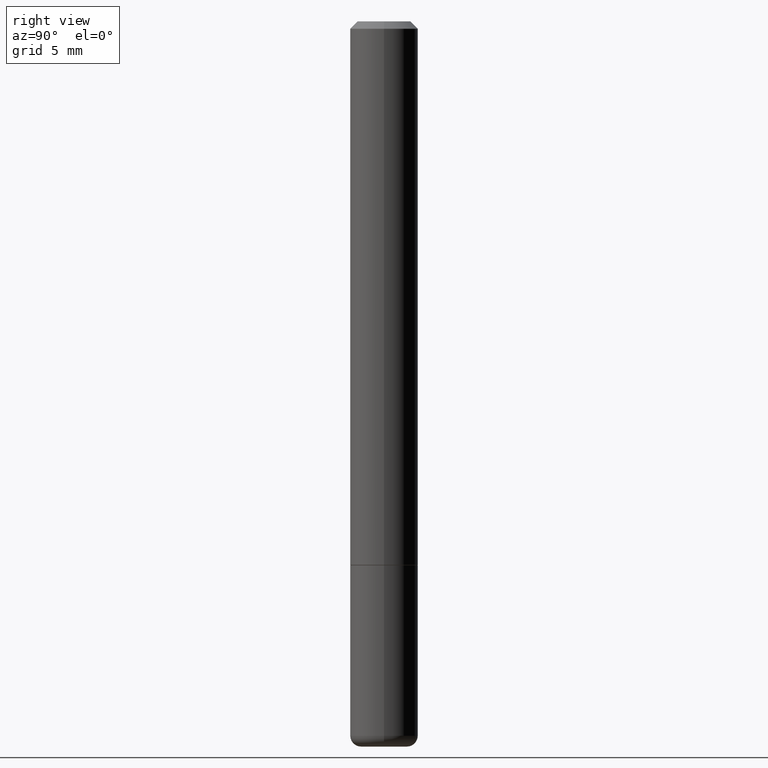
[diagram: clean part render]
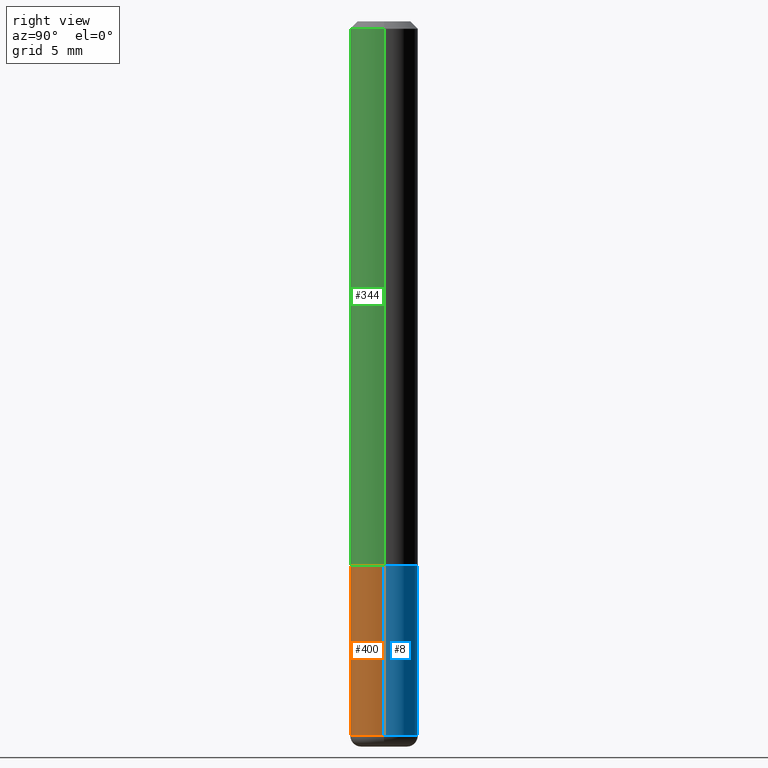
[diagram: same view with three faces highlighted in distinct colors, each labeled with its STEP entity id]
A machine part, right view with three faces highlighted in distinct colors.
Their STEP definitions:

[orange] entity #400 — the highlighted cylindrical surface (edge-blend (fillet) strip) has radius 2.3813 mm, axis along (-0, 0, 1).
#6 = AXIS2_PLACEMENT_3D ( 'NONE', #203, #313, #345 ) ;
#10 = CARTESIAN_POINT ( 'NONE',  ( 0.000000000000000000, 0.000000000000000000, 0.000000000000000000 ) ) ;
#46 = CARTESIAN_POINT ( 'NONE',  ( 0.09374999999999991673, -7.532870988554083722E-15, -1.969999999999999973 ) ) ;
#49 = DIRECTION ( 'NONE',  ( -2.445468806185136597E-29, 3.491481338843145583E-15, 1.000000000000000000 ) ) ;
#59 = DIRECTION ( 'NONE',  ( -2.445468806185136877E-29, 3.491481338843145188E-15, 1.000000000000000000 ) ) ;
#110 = CYLINDRICAL_SURFACE ( 'NONE', #158, 0.09375000000000001388 ) ;
#127 = VECTOR ( 'NONE', #134, 39.37007874015748143 ) ;
#132 = CARTESIAN_POINT ( 'NONE',  ( -0.09375000000000001388, -5.391586308117763273E-15, -1.499999999999999778 ) ) ;
#133 = EDGE_CURVE ( 'NONE', #390, #312, #283, .T. ) ;
#134 = DIRECTION ( 'NONE',  ( -2.445468806185136877E-29, 3.491481338843145188E-15, 1.000000000000000000 ) ) ;
#142 = DIRECTION ( 'NONE',  ( -2.445468806185136597E-29, 3.491481338843145583E-15, 1.000000000000000000 ) ) ;
#144 = CARTESIAN_POINT ( 'NONE',  ( 3.668203209277704335E-29, -5.237222008264717388E-15, -1.499999999999999778 ) ) ;
#158 = AXIS2_PLACEMENT_3D ( 'NONE', #10, #142, #396 ) ;
#164 = AXIS2_PLACEMENT_3D ( 'NONE', #144, #49, #398 ) ;
#171 = VERTEX_POINT ( 'NONE', #343 ) ;
#179 = FACE_OUTER_BOUND ( 'NONE', #263, .T. ) ;
#186 = ORIENTED_EDGE ( 'NONE', *, *, #133, .T. ) ;
#194 = CARTESIAN_POINT ( 'NONE',  ( 0.09375000000000001388, -6.546527510330875041E-16, 4.571415727308690506E-30 ) ) ;
#195 = CARTESIAN_POINT ( 'NONE',  ( -0.09375000000000001388, 6.661338147750940229E-16, -4.611501647113973995E-30 ) ) ;
#200 = CARTESIAN_POINT ( 'NONE',  ( 0.09375000000000001388, -5.891874759297804892E-15, -1.499999999999999778 ) ) ;
#203 = CARTESIAN_POINT ( 'NONE',  ( 4.817573548184719118E-29, -6.878218237520997007E-15, -1.969999999999999973 ) ) ;
#208 = VECTOR ( 'NONE', #59, 39.37007874015748143 ) ;
#210 = EDGE_CURVE ( 'NONE', #171, #327, #294, .T. ) ;
#225 = EDGE_CURVE ( 'NONE', #171, #390, #321, .T. ) ;
#263 = EDGE_LOOP ( 'NONE', ( #351, #297, #186, #392 ) ) ;
#283 = LINE ( 'NONE', #194, #208 ) ;
#290 = CIRCLE ( 'NONE', #164, 0.09375000000000001388 ) ;
#294 = LINE ( 'NONE', #195, #127 ) ;
#297 = ORIENTED_EDGE ( 'NONE', *, *, #225, .T. ) ;
#312 = VERTEX_POINT ( 'NONE', #200 ) ;
#313 = DIRECTION ( 'NONE',  ( -2.445468806185136597E-29, 3.491481338843145583E-15, 1.000000000000000000 ) ) ;
#321 = CIRCLE ( 'NONE', #6, 0.09375000000000001388 ) ;
#327 = VERTEX_POINT ( 'NONE', #132 ) ;
#343 = CARTESIAN_POINT ( 'NONE',  ( -0.09374999999999991673, -6.212084422745903871E-15, -1.969999999999999973 ) ) ;
#345 = DIRECTION ( 'NONE',  ( 1.000000000000000000, -6.982962677686261189E-15, 0.000000000000000000 ) ) ;
#351 = ORIENTED_EDGE ( 'NONE', *, *, #210, .F. ) ;
#390 = VERTEX_POINT ( 'NONE', #46 ) ;
#392 = ORIENTED_EDGE ( 'NONE', *, *, #393, .F. ) ;
#393 = EDGE_CURVE ( 'NONE', #327, #312, #290, .T. ) ;
#396 = DIRECTION ( 'NONE',  ( 1.000000000000000000, -6.982962677686265922E-15, 4.876176775795935793E-29 ) ) ;
#398 = DIRECTION ( 'NONE',  ( 1.000000000000000000, -6.982962677686261189E-15, 0.000000000000000000 ) ) ;
#400 = ADVANCED_FACE ( 'NONE', ( #179 ), #110, .T. ) ;

[blue] entity #8 — the highlighted cylindrical surface (edge-blend (fillet) strip) has radius 2.3813 mm, axis along (-0, 0, 1).
#8 = ADVANCED_FACE ( 'NONE', ( #245 ), #23, .T. ) ;
#18 = CIRCLE ( 'NONE', #255, 0.09375000000000001388 ) ;
#23 = CYLINDRICAL_SURFACE ( 'NONE', #196, 0.09375000000000001388 ) ;
#46 = CARTESIAN_POINT ( 'NONE',  ( 0.09374999999999991673, -7.532870988554083722E-15, -1.969999999999999973 ) ) ;
#59 = DIRECTION ( 'NONE',  ( -2.445468806185136877E-29, 3.491481338843145188E-15, 1.000000000000000000 ) ) ;
#88 = CARTESIAN_POINT ( 'NONE',  ( 0.000000000000000000, 0.000000000000000000, 0.000000000000000000 ) ) ;
#127 = VECTOR ( 'NONE', #134, 39.37007874015748143 ) ;
#132 = CARTESIAN_POINT ( 'NONE',  ( -0.09375000000000001388, -5.391586308117763273E-15, -1.499999999999999778 ) ) ;
#133 = EDGE_CURVE ( 'NONE', #390, #312, #283, .T. ) ;
#134 = DIRECTION ( 'NONE',  ( -2.445468806185136877E-29, 3.491481338843145188E-15, 1.000000000000000000 ) ) ;
#139 = EDGE_CURVE ( 'NONE', #312, #327, #18, .T. ) ;
#140 = AXIS2_PLACEMENT_3D ( 'NONE', #165, #416, #319 ) ;
#155 = DIRECTION ( 'NONE',  ( -2.445468806185136597E-29, 3.491481338843145583E-15, 1.000000000000000000 ) ) ;
#165 = CARTESIAN_POINT ( 'NONE',  ( 4.817573548184719118E-29, -6.878218237520997007E-15, -1.969999999999999973 ) ) ;
#171 = VERTEX_POINT ( 'NONE', #343 ) ;
#194 = CARTESIAN_POINT ( 'NONE',  ( 0.09375000000000001388, -6.546527510330875041E-16, 4.571415727308690506E-30 ) ) ;
#195 = CARTESIAN_POINT ( 'NONE',  ( -0.09375000000000001388, 6.661338147750940229E-16, -4.611501647113973995E-30 ) ) ;
#196 = AXIS2_PLACEMENT_3D ( 'NONE', #88, #155, #335 ) ;
#200 = CARTESIAN_POINT ( 'NONE',  ( 0.09375000000000001388, -5.891874759297804892E-15, -1.499999999999999778 ) ) ;
#208 = VECTOR ( 'NONE', #59, 39.37007874015748143 ) ;
#210 = EDGE_CURVE ( 'NONE', #171, #327, #294, .T. ) ;
#221 = DIRECTION ( 'NONE',  ( 1.000000000000000000, -6.982962677686261189E-15, 0.000000000000000000 ) ) ;
#245 = FACE_OUTER_BOUND ( 'NONE', #266, .T. ) ;
#255 = AXIS2_PLACEMENT_3D ( 'NONE', #411, #339, #221 ) ;
#266 = EDGE_LOOP ( 'NONE', ( #395, #373, #324, #384 ) ) ;
#275 = EDGE_CURVE ( 'NONE', #390, #171, #361, .T. ) ;
#283 = LINE ( 'NONE', #194, #208 ) ;
#294 = LINE ( 'NONE', #195, #127 ) ;
#312 = VERTEX_POINT ( 'NONE', #200 ) ;
#319 = DIRECTION ( 'NONE',  ( 1.000000000000000000, -6.982962677686261189E-15, 0.000000000000000000 ) ) ;
#324 = ORIENTED_EDGE ( 'NONE', *, *, #139, .F. ) ;
#327 = VERTEX_POINT ( 'NONE', #132 ) ;
#335 = DIRECTION ( 'NONE',  ( 1.000000000000000000, -6.982962677686265922E-15, 4.876176775795935793E-29 ) ) ;
#339 = DIRECTION ( 'NONE',  ( -2.445468806185136597E-29, 3.491481338843145583E-15, 1.000000000000000000 ) ) ;
#343 = CARTESIAN_POINT ( 'NONE',  ( -0.09374999999999991673, -6.212084422745903871E-15, -1.969999999999999973 ) ) ;
#361 = CIRCLE ( 'NONE', #140, 0.09375000000000001388 ) ;
#373 = ORIENTED_EDGE ( 'NONE', *, *, #210, .T. ) ;
#384 = ORIENTED_EDGE ( 'NONE', *, *, #133, .F. ) ;
#390 = VERTEX_POINT ( 'NONE', #46 ) ;
#395 = ORIENTED_EDGE ( 'NONE', *, *, #275, .T. ) ;
#411 = CARTESIAN_POINT ( 'NONE',  ( 3.668203209277704335E-29, -5.237222008264717388E-15, -1.499999999999999778 ) ) ;
#416 = DIRECTION ( 'NONE',  ( -2.445468806185136597E-29, 3.491481338843145583E-15, 1.000000000000000000 ) ) ;

[green] entity #344 — the highlighted cylindrical surface (edge-blend (fillet) strip) has radius 2.3813 mm, axis along (-0, 0, 1).
#9 = ORIENTED_EDGE ( 'NONE', *, *, #380, .T. ) ;
#12 = AXIS2_PLACEMENT_3D ( 'NONE', #325, #112, #274 ) ;
#27 = LINE ( 'NONE', #137, #174 ) ;
#36 = CARTESIAN_POINT ( 'NONE',  ( 0.09375000000000020817, -5.888383277958964251E-15, -1.498999999999999666 ) ) ;
#63 = AXIS2_PLACEMENT_3D ( 'NONE', #187, #306, #124 ) ;
#67 = CARTESIAN_POINT ( 'NONE',  ( -0.09375000000000001388, 5.848231242562245017E-16, -0.02000000000000001776 ) ) ;
#82 = CYLINDRICAL_SURFACE ( 'NONE', #12, 0.09375000000000011102 ) ;
#90 = EDGE_CURVE ( 'NONE', #270, #180, #239, .T. ) ;
#97 = EDGE_LOOP ( 'NONE', ( #143, #9, #363, #178 ) ) ;
#112 = DIRECTION ( 'NONE',  ( -2.445468806185136597E-29, 3.491481338843145583E-15, 1.000000000000000000 ) ) ;
#124 = DIRECTION ( 'NONE',  ( 1.000000000000000000, -6.982962677686265922E-15, 0.000000000000000000 ) ) ;
#136 = FACE_OUTER_BOUND ( 'NONE', #97, .T. ) ;
#137 = CARTESIAN_POINT ( 'NONE',  ( 0.09375000000000011102, -6.546527510330881944E-16, 4.571415727308695411E-30 ) ) ;
#143 = ORIENTED_EDGE ( 'NONE', *, *, #311, .F. ) ;
#170 = DIRECTION ( 'NONE',  ( 1.000000000000000000, -6.982962677686268288E-15, 0.000000000000000000 ) ) ;
#174 = VECTOR ( 'NONE', #350, 39.37007874015748143 ) ;
#176 = DIRECTION ( 'NONE',  ( -2.445468806185136597E-29, 3.491481338843145583E-15, 1.000000000000000000 ) ) ;
#178 = ORIENTED_EDGE ( 'NONE', *, *, #90, .F. ) ;
#180 = VERTEX_POINT ( 'NONE', #287 ) ;
#187 = CARTESIAN_POINT ( 'NONE',  ( 4.890937612370276662E-31, -6.982962677686296539E-17, -0.02000000000000001776 ) ) ;
#197 = CIRCLE ( 'NONE', #234, 0.09375000000000020817 ) ;
#198 = DIRECTION ( 'NONE',  ( -2.445468806185136877E-29, 3.491481338843145188E-15, 1.000000000000000000 ) ) ;
#201 = VERTEX_POINT ( 'NONE', #353 ) ;
#207 = CARTESIAN_POINT ( 'NONE',  ( 3.665757740471518732E-29, -5.233730526925875170E-15, -1.498999999999999666 ) ) ;
#234 = AXIS2_PLACEMENT_3D ( 'NONE', #207, #176, #170 ) ;
#237 = EDGE_CURVE ( 'NONE', #295, #180, #27, .T. ) ;
#239 = CIRCLE ( 'NONE', #63, 0.09375000000000001388 ) ;
#241 = VECTOR ( 'NONE', #198, 39.37007874015748143 ) ;
#254 = CARTESIAN_POINT ( 'NONE',  ( -0.09375000000000011102, 6.661338147750947131E-16, -4.611501647113979600E-30 ) ) ;
#257 = LINE ( 'NONE', #254, #241 ) ;
#270 = VERTEX_POINT ( 'NONE', #67 ) ;
#274 = DIRECTION ( 'NONE',  ( 1.000000000000000000, -6.982962677686265922E-15, 4.876176775795935793E-29 ) ) ;
#287 = CARTESIAN_POINT ( 'NONE',  ( 0.09375000000000001388, -7.130013140679441850E-16, -0.02000000000000001776 ) ) ;
#295 = VERTEX_POINT ( 'NONE', #36 ) ;
#306 = DIRECTION ( 'NONE',  ( -2.445468806185136597E-29, 3.491481338843145583E-15, 1.000000000000000000 ) ) ;
#311 = EDGE_CURVE ( 'NONE', #201, #270, #257, .T. ) ;
#325 = CARTESIAN_POINT ( 'NONE',  ( 0.000000000000000000, 0.000000000000000000, 0.000000000000000000 ) ) ;
#344 = ADVANCED_FACE ( 'NONE', ( #136 ), #82, .T. ) ;
#350 = DIRECTION ( 'NONE',  ( -2.445468806185136877E-29, 3.491481338843145188E-15, 1.000000000000000000 ) ) ;
#353 = CARTESIAN_POINT ( 'NONE',  ( -0.09375000000000020817, -1.985646262076270971E-15, -1.498999999999999666 ) ) ;
#363 = ORIENTED_EDGE ( 'NONE', *, *, #237, .T. ) ;
#380 = EDGE_CURVE ( 'NONE', #201, #295, #197, .T. ) ;